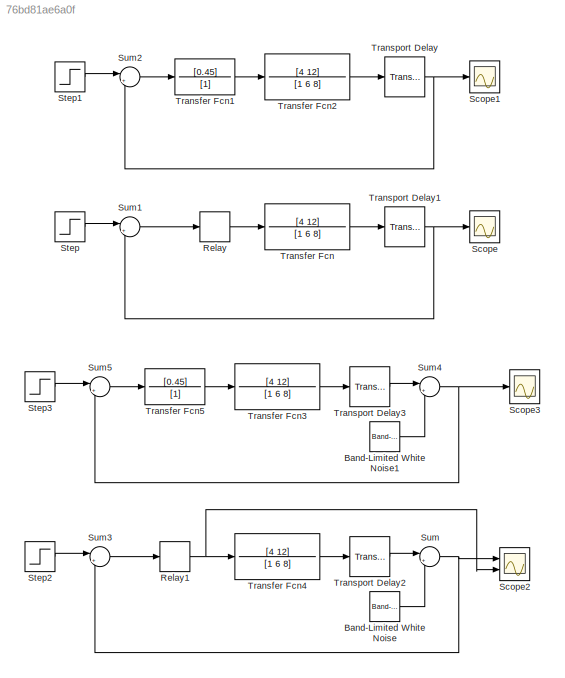
MODEL slx_76bd81ae6a0f
KIND model
CONFIG AbsTol = auto
CONFIG EnableMultiTasking = off
CONFIG FixedStep = auto
CONFIG MaxStep = auto
CONFIG MinStep = auto
CONFIG RelTol = 1e-3
CONFIG SampleTimeConstraint = Unconstrained
CONFIG SolverName = VariableStepAuto
CONFIG StartTime = 0.0
CONFIG StopTime = 30
BLOCK [Reference] Band-Limited White Noise  REF=simulink/Sources/Band-Limited
White Noise
  Ports = [0, 1]
  SourceBlock = simulink/Sources/Band-Limited\nWhite Noise
  SourceProductBaseCode = SL
  SourceType = Band-Limited White Noise.
BLOCK [Reference] Band-Limited White Noise1  REF=simulink/Sources/Band-Limited
White Noise
  Ports = [0, 1]
  SourceBlock = simulink/Sources/Band-Limited\nWhite Noise
  SourceProductBaseCode = SL
  SourceType = Band-Limited White Noise.
BLOCK [Relay] Relay
  OffOutputValue = -0.45
  OnOutputValue = 0.45
BLOCK [Relay] Relay1
  OffOutputValue = -2
  OffSwitchValue = -1
  OnOutputValue = 2
  OnSwitchValue = 1
BLOCK [Scope] Scope
  Floating = off
  NumInputPorts = 1
  Ports = [1]
  ScopeSpecificationString = Simulink.scopes.TimeScopeBlockCfg('CurrentConfiguration', extmgr.ConfigurationSet(extmgr.Configuration('Core','General UI',true),extmgr.Configuration('Core','Source UI',true),extmgr.Configuration('Sources','WiredSimulink',true),extmgr.Configuration('Visuals','Time Domain',true,'SerializedDisplays',{struct('MinYLimReal','-2.56597','MaxYLimReal','2.70501','YLabelReal','','MinYLimMag','0.00000','MaxY...<+1441ch>
BLOCK [Scope] Scope1
  Floating = off
  NumInputPorts = 1
  Ports = [1]
  ScopeSpecificationString = Simulink.scopes.TimeScopeBlockCfg('CurrentConfiguration', extmgr.ConfigurationSet(extmgr.Configuration('Core','General UI',true),extmgr.Configuration('Core','Source UI',true),extmgr.Configuration('Sources','WiredSimulink',true,'DataLoggingVariableName','ScopeData1'),extmgr.Configuration('Visuals','Time Domain',true,'SerializedDisplays',{struct('MinYLimReal','-1.04014','MaxYLimReal','2.22764','YLab...<+1453ch>
BLOCK [Scope] Scope2
  Floating = off
  NumInputPorts = 2
  Ports = [2]
  ScopeSpecificationString = Simulink.scopes.TimeScopeBlockCfg('CurrentConfiguration', extmgr.ConfigurationSet(extmgr.Configuration('Core','General UI',true),extmgr.Configuration('Core','Source UI',true),extmgr.Configuration('Sources','WiredSimulink',true,'DataLoggingVariableName','ScopeData2'),extmgr.Configuration('Visuals','Time Domain',true,'SerializedDisplays',{struct('MinYLimReal','-2.35188','MaxYLimReal','2.41688','YLab...<+1452ch>
BLOCK [Scope] Scope3
  Floating = off
  NumInputPorts = 1
  Ports = [1]
  ScopeSpecificationString = Simulink.scopes.TimeScopeBlockCfg('CurrentConfiguration', extmgr.ConfigurationSet(extmgr.Configuration('Core','General UI',true),extmgr.Configuration('Core','Source UI',true),extmgr.Configuration('Sources','WiredSimulink',true,'DataLoggingVariableName','ScopeData3'),extmgr.Configuration('Visuals','Time Domain',true,'SerializedDisplays',{struct('MinYLimReal','-2.35188','MaxYLimReal','2.41688','YLab...<+1452ch>
BLOCK [Step] Step
  SampleTime = 0
BLOCK [Step] Step1
  SampleTime = 0
BLOCK [Step] Step2
  SampleTime = 0
BLOCK [Step] Step3
  SampleTime = 0
BLOCK [Sum] Sum
  Inputs = |++
  Ports = [2, 1]
BLOCK [Sum] Sum1
  Inputs = |+-
  Ports = [2, 1]
BLOCK [Sum] Sum2
  Inputs = |+-
  Ports = [2, 1]
BLOCK [Sum] Sum3
  Inputs = |+-
  Ports = [2, 1]
BLOCK [Sum] Sum4
  Inputs = |++
  Ports = [2, 1]
BLOCK [Sum] Sum5
  Inputs = |+-
  Ports = [2, 1]
BLOCK [TransferFcn] Transfer Fcn
  Denominator = [1 6 8]
  Numerator = [4 12]
BLOCK [TransferFcn] Transfer Fcn1
  Denominator = [1]
  Numerator = [0.45]
BLOCK [TransferFcn] Transfer Fcn2
  Denominator = [1 6 8]
  Numerator = [4 12]
BLOCK [TransferFcn] Transfer Fcn3
  Denominator = [1 6 8]
  Numerator = [4 12]
BLOCK [TransferFcn] Transfer Fcn4
  Denominator = [1 6 8]
  Numerator = [4 12]
BLOCK [TransferFcn] Transfer Fcn5
  Denominator = [1]
  Numerator = [0.45]
BLOCK [TransportDelay] Transport Delay
  Ports = [1, 1]
BLOCK [TransportDelay] Transport Delay1
  Ports = [1, 1]
BLOCK [TransportDelay] Transport Delay2
  Ports = [1, 1]
BLOCK [TransportDelay] Transport Delay3
  Ports = [1, 1]
LINE Band-Limited White Noise1:1 -> Sum4:2
LINE Band-Limited White Noise:1 -> Sum:2
NET Relay1:1 -> Scope2:2, Transfer Fcn4:1
LINE Relay:1 -> Transfer Fcn:1
LINE Step1:1 -> Sum2:1
LINE Step2:1 -> Sum3:1
LINE Step3:1 -> Sum5:1
LINE Step:1 -> Sum1:1
LINE Sum1:1 -> Relay:1
LINE Sum2:1 -> Transfer Fcn1:1
LINE Sum3:1 -> Relay1:1
NET Sum4:1 -> Scope3:1, Sum5:2
LINE Sum5:1 -> Transfer Fcn5:1
NET Sum:1 -> Scope2:1, Sum3:2
LINE Transfer Fcn1:1 -> Transfer Fcn2:1
LINE Transfer Fcn2:1 -> Transport Delay:1
LINE Transfer Fcn3:1 -> Transport Delay3:1
LINE Transfer Fcn4:1 -> Transport Delay2:1
LINE Transfer Fcn5:1 -> Transfer Fcn3:1
LINE Transfer Fcn:1 -> Transport Delay1:1
NET Transport Delay1:1 -> Scope:1, Sum1:2
LINE Transport Delay2:1 -> Sum:1
LINE Transport Delay3:1 -> Sum4:1
NET Transport Delay:1 -> Scope1:1, Sum2:2
note: NET lines group one-source signal fan-out (src -> all destinations, sorted); 1:1 wires keep LINE
